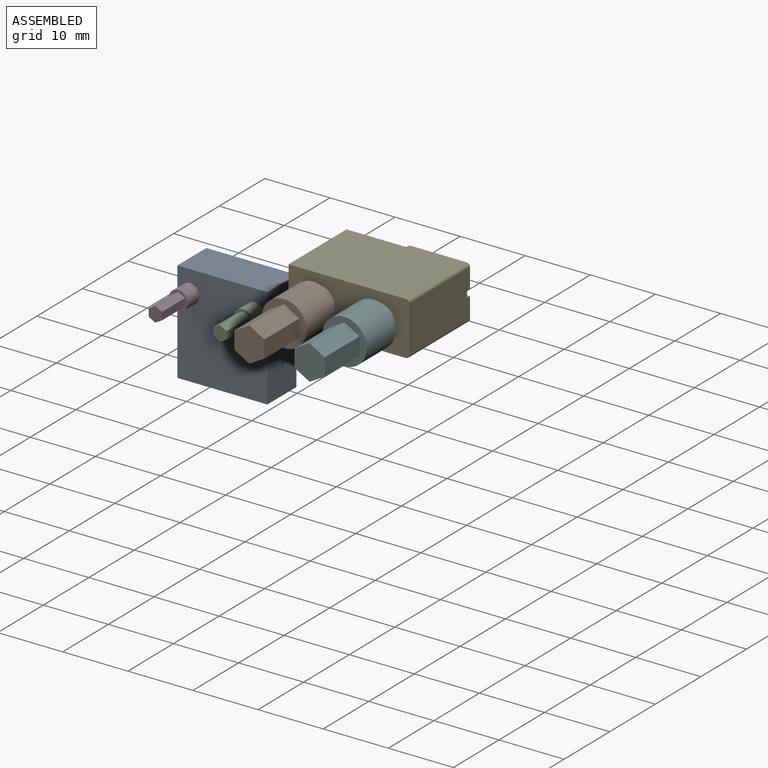
[diagram: assembled view]
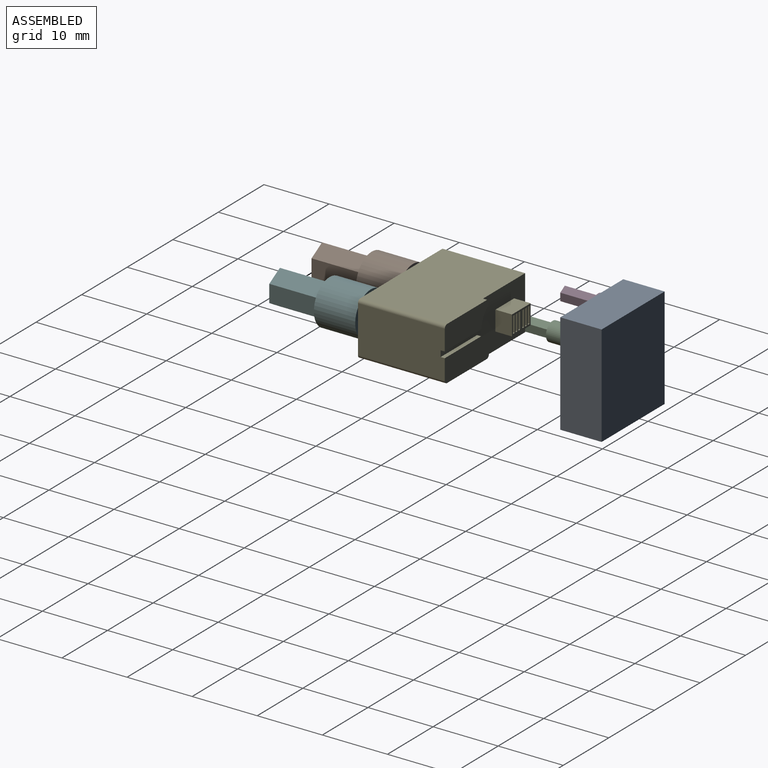
[diagram: assembled view, second angle]
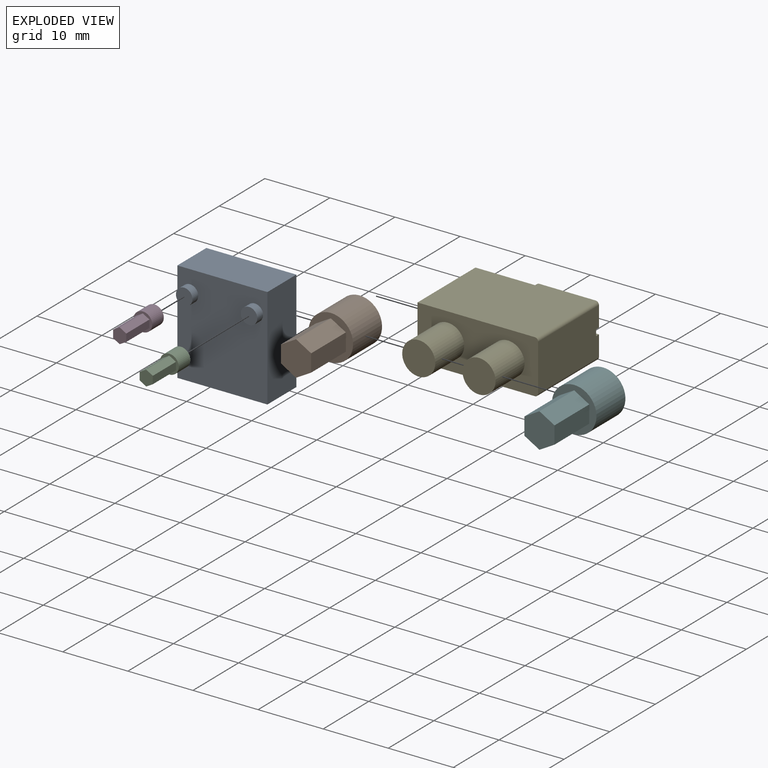
[diagram: exploded view]
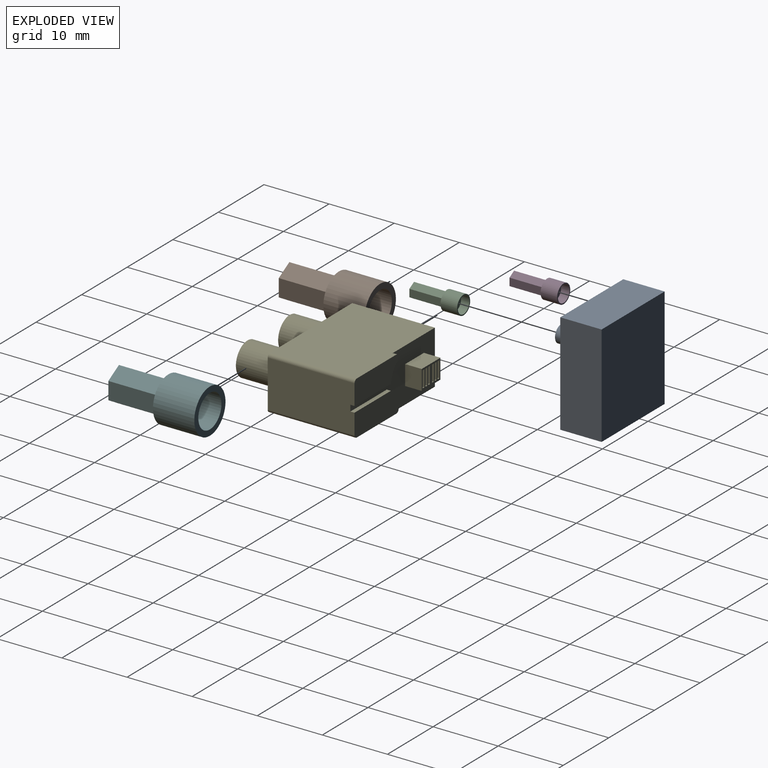
[diagram: exploded view, second angle]
ASSEMBLY  parts=6 mates=4
PART A: 36 faces, bbox 13.8x7.6x15.6 mm
  f0: plane 2.18x2.18mm, normal (0,0,-1), area 2.9mm2, adj f21,f23,f25,f27,f29,f31,f32,f34
  f1: plane 13.83x6.35mm, normal (0,0,-1), area 73.6mm2, adj f2,f4,f5,f6,f11,f12,f13,f14
  f2: plane 15.61x6.35mm, normal (1,0,0), area 99.1mm2, adj f1,f3,f5,f6
  f3: plane 13.83x6.35mm, normal (0,0,1), area 87.8mm2, adj f2,f4,f5,f6
  f4: plane 15.61x6.35mm, normal (-1,0,0), area 99.1mm2, adj f1,f3,f5,f6
  f5: plane 15.61x13.83mm, normal (0,-1,0), area 205.7mm2, adj f1,f2,f3,f4,f7,f9
  f6: plane 15.61x13.83mm, normal (0,1,0), area 215.9mm2, adj f1,f2,f3,f4
  f7: cylinder r=1.27mm len=2.54mm, axis (0,1,0), area 10.1mm2, adj f5,f8
  f8: plane 2.54x2.54mm, normal (0,-1,0), area 5.1mm2, adj f7
  f9: cylinder r=1.27mm len=2.54mm, axis (0,1,0), area 10.1mm2, adj f5,f10
  f10: plane 2.54x2.54mm, normal (0,-1,0), area 5.1mm2, adj f9
  f11: plane 2.54x1.91mm, normal (-0.9,0.44,0), area 5.4mm2, adj f1,f12,f16,f17
  f12: plane 4.48x2.54mm, normal (0,1,0), area 11.4mm2, adj f1,f11,f13,f17
  f13: plane 2.54x1.91mm, normal (0.9,0.44,0), area 5.4mm2, adj f1,f12,f14,f17
  f14: plane 2.54x0.95mm, normal (-0.31,-0.95,0), area 2.5mm2, adj f1,f13,f15,f17
  f15: plane 4.48x2.54mm, normal (0,-1,0), area 11.4mm2, adj f1,f14,f16,f17
  f16: plane 2.54x0.95mm, normal (0.31,-0.95,0), area 2.5mm2, adj f1,f11,f15,f17
  f17: plane 6.37x1.91mm, normal (0,0,-1), area 8.7mm2, adj f11,f12,f13,f14,f15,f16
  f18: cylinder r=1.33mm len=3.05mm, axis (0,0,-1), area 25.5mm2, adj f1,f19
  f19: plane 2.67x2.67mm, normal (0,0,-1), area 1mm2, adj f18,f20
  f20: cylinder r=1.21mm len=2.43mm, axis (0,0,1), area 18.4mm2, adj f19,f31
  f21: cylinder r=0.19mm len=2.54mm, axis (0,0,-1), area 3mm2, adj f0,f22
  f22: plane 0.38x0.38mm, normal (0,0,-1), area 0.1mm2, adj f21
  f23: cylinder r=0.19mm len=2.54mm, axis (0,0,-1), area 3mm2, adj f0,f24
  f24: plane 0.38x0.38mm, normal (0,0,-1), area 0.1mm2, adj f23
  f25: cylinder r=0.19mm len=2.54mm, axis (0,0,-1), area 3mm2, adj f0,f26
  f26: plane 0.38x0.38mm, normal (0,0,-1), area 0.1mm2, adj f25
  f27: cylinder r=0.19mm len=2.54mm, axis (0,0,-1), area 3mm2, adj f0,f28
  f28: plane 0.38x0.38mm, normal (0,0,-1), area 0.1mm2, adj f27
  f29: cylinder r=0.19mm len=2.54mm, axis (0,0,-1), area 3mm2, adj f0,f30
  f30: plane 0.38x0.38mm, normal (0,0,-1), area 0.1mm2, adj f29
  f31: torus R=1.09mm, axis (0,0,-1), area 1.5mm2, adj f0,f20
  f32: cylinder r=0.19mm len=2.54mm, axis (0,0,-1), area 3mm2, adj f0,f33
  f33: plane 0.38x0.38mm, normal (0,0,-1), area 0.1mm2, adj f32
  f34: cylinder r=0.19mm len=2.54mm, axis (0,0,-1), area 3mm2, adj f0,f35
  f35: plane 0.38x0.38mm, normal (0,0,-1), area 0.1mm2, adj f34
PART B: 12 faces, bbox 6.8x14x6.8 mm
  f0: plane 7.62x2.32mm, normal (-0.5,0,0.87), area 20.4mm2, adj f1,f5,f6,f7
  f1: plane 7.62x2.32mm, normal (0.5,0,0.87), area 20.4mm2, adj f0,f2,f6,f7
  f2: plane 7.62x2.67mm, normal (1,0,0), area 20.4mm2, adj f1,f3,f6,f7
  f3: plane 7.62x2.32mm, normal (0.5,0,-0.87), area 20.4mm2, adj f2,f4,f6,f7
  f4: plane 7.62x2.32mm, normal (-0.5,0,-0.87), area 20.4mm2, adj f3,f5,f6,f7
  f5: plane 7.62x2.67mm, normal (-1,0,0), area 20.4mm2, adj f0,f4,f6,f7
  f6: plane 5.35x4.63mm, normal (0,-1,0), area 18.6mm2, adj f0,f1,f2,f3,f4,f5
  f7: plane 6.85x6.85mm, normal (0,-1,0), area 18.2mm2, adj f0,f1,f2,f3,f4,f5,f8
  f8: cylinder r=3.42mm len=6.85mm, axis (0,-1,0), area 136.6mm2, adj f7,f9
  f9: plane 6.85x6.85mm, normal (0,1,0), area 16.6mm2, adj f8,f10
  f10: cylinder r=2.54mm len=5.08mm, axis (0,1,0), area 81.1mm2, adj f9,f11
  f11: plane 5.08x5.08mm, normal (0,1,0), area 20.3mm2, adj f10
PART C: 12 faces, bbox 2.9x7.6x2.9 mm
  f0: plane 5.08x1.01mm, normal (-0.5,0,0.87), area 5.9mm2, adj f1,f5,f6,f7
  f1: plane 5.08x1.01mm, normal (0.5,0,0.87), area 5.9mm2, adj f0,f2,f6,f7
  f2: plane 5.08x1.17mm, normal (1,0,0), area 5.9mm2, adj f1,f3,f6,f7
  f3: plane 5.08x1.01mm, normal (0.5,0,-0.87), area 5.9mm2, adj f2,f4,f6,f7
  f4: plane 5.08x1.01mm, normal (-0.5,0,-0.87), area 5.9mm2, adj f3,f5,f6,f7
  f5: plane 5.08x1.17mm, normal (-1,0,0), area 5.9mm2, adj f0,f4,f6,f7
  f6: plane 2.34x2.02mm, normal (0,-1,0), area 3.5mm2, adj f0,f1,f2,f3,f4,f5
  f7: plane 2.89x2.89mm, normal (0,-1,0), area 3mm2, adj f0,f1,f2,f3,f4,f5,f8
  f8: cylinder r=1.44mm len=2.89mm, axis (0,-1,0), area 23mm2, adj f7,f9
  f9: plane 2.89x2.89mm, normal (0,1,0), area 1.5mm2, adj f8,f10
  f10: cylinder r=1.27mm len=2.54mm, axis (0,1,0), area 10.1mm2, adj f9,f11
  f11: plane 2.54x2.54mm, normal (0,1,0), area 5.1mm2, adj f10
PART D: same geometry as C
PART E: 55 faces, bbox 18.5x21.6x8.2 mm
  f0: plane 9.68x3.63mm, normal (0,1,0), area 31.8mm2, adj f1,f4,f47,f49,f51,f53
  f1: plane 13.34x7.18mm, normal (1,0,0), area 95.1mm2, adj f0,f3,f7,f48,f51,f52,f53,f54
  f2: cylinder r=4.1mm len=2.72mm, axis (0,-1,0), area 2mm2, adj f3,f48,f50,f54
  f3: plane 18.53x8.19mm, normal (0,1,0), area 75.7mm2, adj f1,f2,f4,f5,f6,f12,f13,f14
  f4: plane 18.02x13.34mm, normal (0,0,1), area 234.4mm2, adj f0,f3,f5,f7,f49,f51
  f5: plane 12.7x8.19mm, normal (-1,0,0), area 104.1mm2, adj f3,f4,f6,f7
  f6: plane 18.02x13.34mm, normal (0,0,-1), area 234.4mm2, adj f3,f5,f7,f48,f50,f52
  f7: plane 18.53x8.19mm, normal (0,-1,0), area 111.2mm2, adj f1,f4,f5,f6,f8,f10,f51,f52
  f8: cylinder r=2.54mm len=6.35mm, axis (0,1,0), area 101.3mm2, adj f7,f9
  f9: plane 5.08x5.08mm, normal (0,-1,0), area 20.3mm2, adj f8
  f10: cylinder r=2.54mm len=6.35mm, axis (0,1,0), area 101.3mm2, adj f7,f11
  f11: plane 5.08x5.08mm, normal (0,-1,0), area 20.3mm2, adj f10
  f12: plane 4.11x2.54mm, normal (0,0,1), area 10.4mm2, adj f3,f13,f39,f40
  f13: plane 3.04x2.54mm, normal (1,0,0), area 7.7mm2, adj f3,f12,f14,f40
  f14: plane 4.11x2.54mm, normal (0,0,-1), area 10.4mm2, adj f3,f13,f39,f40
  f15: plane 2.54x0.38mm, normal (0,0,-1), area 1mm2, adj f16,f33,f40,f41
  f16: plane 2.54x2.51mm, normal (1,0,0), area 6.4mm2, adj f15,f17,f40,f41
  f17: plane 2.54x0.38mm, normal (0,0,1), area 1mm2, adj f16,f33,f40,f41
  f18: plane 2.54x0.38mm, normal (0,0,-1), area 1mm2, adj f19,f34,f40,f42
  f19: plane 2.54x2.51mm, normal (1,0,0), area 6.4mm2, adj f18,f20,f40,f42
  f20: plane 2.54x0.38mm, normal (0,0,1), area 1mm2, adj f19,f34,f40,f42
  f21: plane 2.54x0.38mm, normal (0,0,-1), area 1mm2, adj f22,f35,f40,f43
  f22: plane 2.54x2.51mm, normal (1,0,0), area 6.4mm2, adj f21,f23,f40,f43
  f23: plane 2.54x0.38mm, normal (0,0,1), area 1mm2, adj f22,f35,f40,f43
  f24: plane 2.54x2.51mm, normal (-1,0,0), area 6.4mm2, adj f25,f36,f40,f44
  f25: plane 2.54x0.38mm, normal (0,0,-1), area 1mm2, adj f24,f26,f40,f44
  f26: plane 2.54x2.51mm, normal (1,0,0), area 6.4mm2, adj f25,f36,f40,f44
  f27: plane 2.54x2.51mm, normal (-1,0,0), area 6.4mm2, adj f28,f37,f40,f45
  f28: plane 2.54x0.38mm, normal (0,0,-1), area 1mm2, adj f27,f29,f40,f45
  f29: plane 2.54x2.51mm, normal (1,0,0), area 6.4mm2, adj f28,f37,f40,f45
  f30: plane 2.54x2.51mm, normal (-1,0,0), area 6.4mm2, adj f31,f38,f40,f46
  f31: plane 2.54x0.38mm, normal (0,0,-1), area 1mm2, adj f30,f32,f40,f46
  f32: plane 2.54x2.51mm, normal (1,0,0), area 6.4mm2, adj f31,f38,f40,f46
  f33: plane 2.54x2.51mm, normal (-1,0,0), area 6.4mm2, adj f15,f17,f40,f41
  f34: plane 2.54x2.51mm, normal (-1,0,0), area 6.4mm2, adj f18,f20,f40,f42
  f35: plane 2.54x2.51mm, normal (-1,0,0), area 6.4mm2, adj f21,f23,f40,f43
  f36: plane 2.54x0.38mm, normal (0,0,1), area 1mm2, adj f24,f26,f40,f44
  f37: plane 2.54x0.38mm, normal (0,0,1), area 1mm2, adj f27,f29,f40,f45
  f38: plane 2.54x0.38mm, normal (0,0,1), area 1mm2, adj f30,f32,f40,f46
  f39: plane 3.04x2.54mm, normal (-1,0,0), area 7.7mm2, adj f3,f12,f14,f40
  f40: plane 4.11x3.04mm, normal (0,1,0), area 6.8mm2, adj f12,f13,f14,f15,f16,f17,f18,f19
  f41: plane 2.51x0.38mm, normal (0,1,0), area 1mm2, adj f15,f16,f17,f33
  f42: plane 2.51x0.38mm, normal (0,1,0), area 1mm2, adj f18,f19,f20,f34
  f43: plane 2.51x0.38mm, normal (0,1,0), area 1mm2, adj f21,f22,f23,f35
  f44: plane 2.51x0.38mm, normal (0,1,0), area 1mm2, adj f24,f25,f26,f36
  f45: plane 2.51x0.38mm, normal (0,1,0), area 1mm2, adj f27,f28,f29,f37
  f46: plane 2.51x0.38mm, normal (0,1,0), area 1mm2, adj f30,f31,f32,f38
  f47: cylinder r=4.1mm len=2.72mm, axis (0,-1,0), area 2mm2, adj f0,f3,f49,f53
  f48: plane 9.68x3.63mm, normal (0,1,0), area 31.8mm2, adj f1,f2,f6,f50,f52,f54
  f49: cylinder r=0.51mm len=0.9mm, axis (0,-1,0), area 0.8mm2, adj f0,f3,f4,f47
  f50: cylinder r=0.51mm len=0.9mm, axis (0,-1,0), area 0.8mm2, adj f2,f3,f6,f48
  f51: cylinder r=0.51mm len=13.34mm, axis (0,-1,0), area 10.6mm2, adj f0,f1,f4,f7
  f52: cylinder r=0.51mm len=13.34mm, axis (0,1,0), area 10.6mm2, adj f1,f6,f7,f48
  f53: plane 7.99x0.64mm, normal (0,0,-1), area 5.1mm2, adj f0,f1,f3,f47
  f54: plane 7.99x0.64mm, normal (0,0,1), area 5.1mm2, adj f1,f2,f3,f48
PART F: same geometry as B
PLACE A t=(-11.93,-30.15,0.34)mm
PLACE B t=(31.9,-29.72,253.4)mm
PLACE C t=(-28.21,13.91,271.24)mm
PLACE D t=(-38.17,13.91,271.24)mm
PLACE E t=(38.47,-34.41,-4.14)mm
PLACE F t=(41.17,-29.72,253.4)mm
MATE fastened D.f8 <-> A.f7  axis (0,1,0) through (-11.93,-37.77,0.34)mm
MATE fastened B.f8 <-> E.f8  axis (0,1,0) through (15.29,-53.46,10.37)mm
MATE fastened F.f8 <-> E.f10  axis (0,1,0) through (24.55,-53.46,10.37)mm
MATE fastened C.f8 <-> A.f9  axis (0,1,0) through (-1.97,-37.77,0.34)mm
